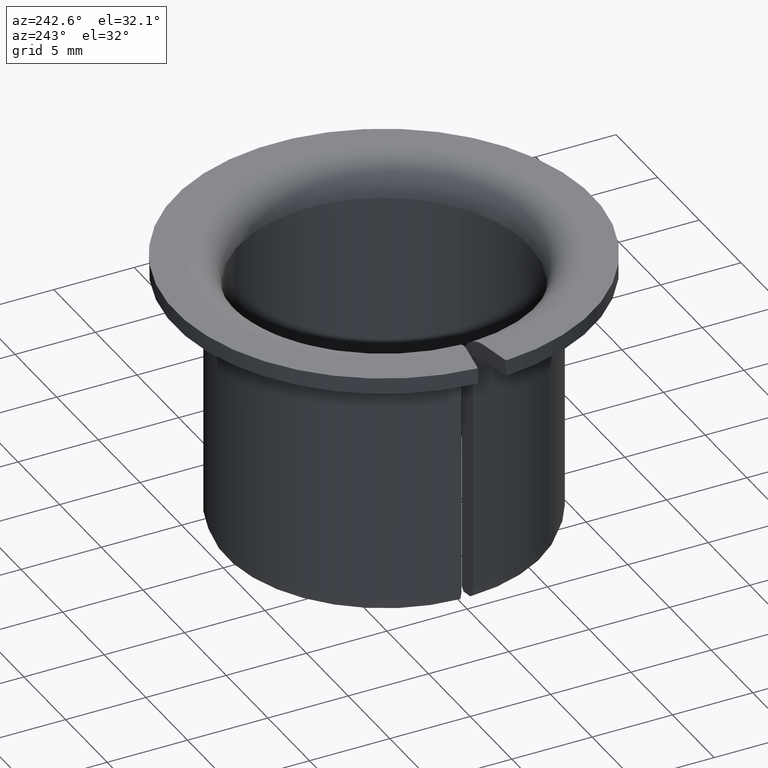
[diagram: clean part render]
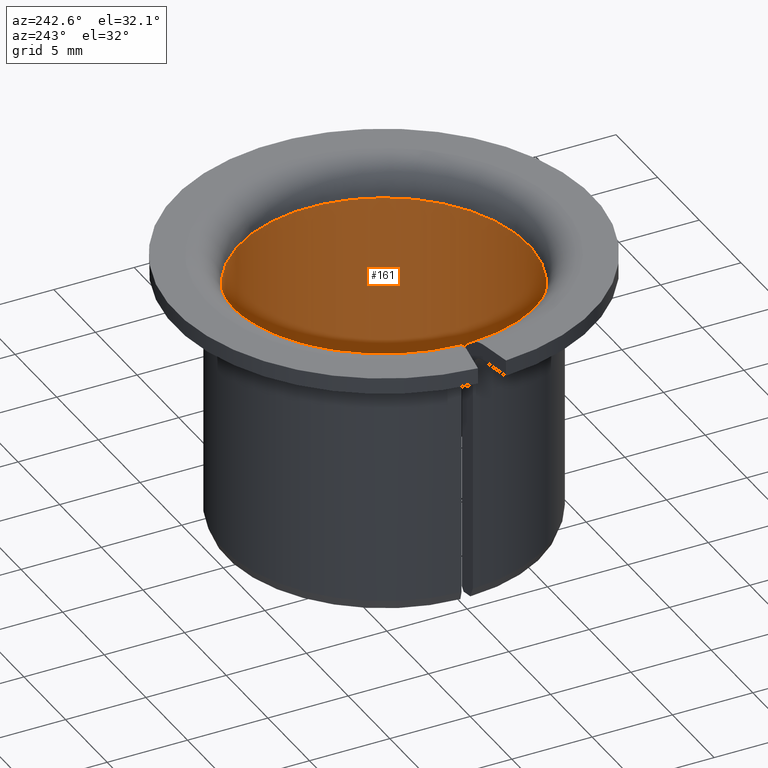
[diagram: same view with one face highlighted and labeled with its STEP entity id]
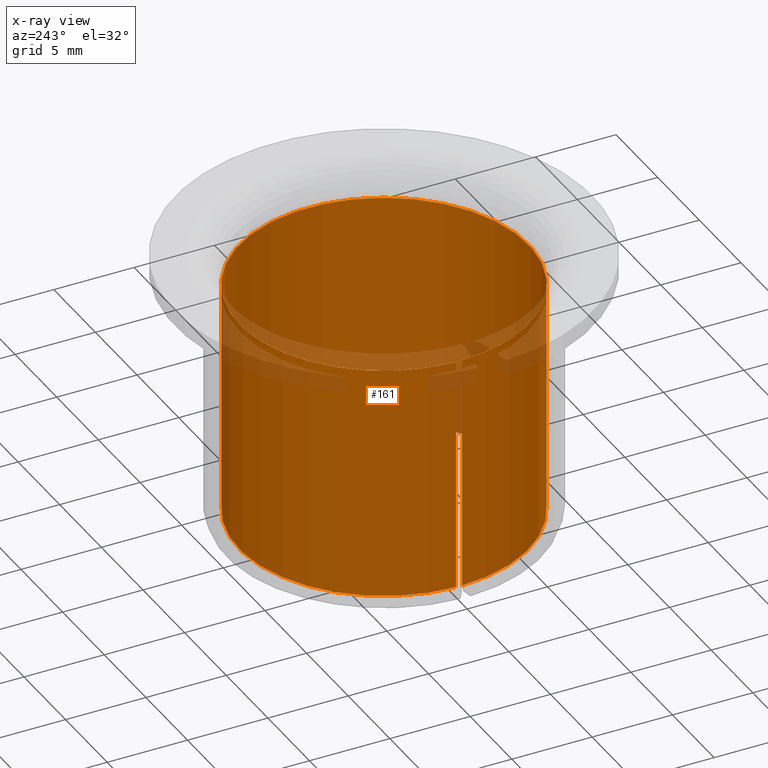
[diagram: x-ray of the same camera — body ghosted, the highlighted face saturated]
A machine part, auxiliary view. The second image highlights one B-rep face of the part: STEP entity #161.
The next image is the same camera in x-ray: the body ghosted, the highlighted face saturated — about 9% of this face is hidden behind the body in this view.
In plain terms, the highlighted cylindrical surface (partial cylindrical patch) has radius 9 mm, axis along (-0, 0, -1).
Its self-contained STEP definition (entity closure, byte-faithful):
#161=ADVANCED_FACE('',(#183),#184,.F.);
#183=FACE_OUTER_BOUND('',#208,.T.);
#184=CYLINDRICAL_SURFACE('',#209,0.009);
#208=EDGE_LOOP('',(#278,#279,#280,#281));
#209=AXIS2_PLACEMENT_3D('',#282,#283,#284);
#278=ORIENTED_EDGE('',*,*,#324,.T.);
#279=ORIENTED_EDGE('',*,*,#338,.T.);
#280=ORIENTED_EDGE('',*,*,#325,.F.);
#281=ORIENTED_EDGE('',*,*,#321,.F.);
#282=CARTESIAN_POINT('',(0.0,0.0,0.0));
#283=DIRECTION('',(0.0,-6.12323399573677E-017,-1.0));
#284=DIRECTION('',(0.0,1.0,-6.12323399573677E-017));
#321=EDGE_CURVE('',#359,#342,#361,.F.);
#324=EDGE_CURVE('',#359,#364,#366,.T.);
#325=EDGE_CURVE('',#342,#367,#368,.T.);
#338=EDGE_CURVE('',#364,#367,#387,.F.);
#342=VERTEX_POINT('',#392);
#359=VERTEX_POINT('',#437);
#361=LINE('',#442,#443);
#364=VERTEX_POINT('',#446);
#366=CIRCLE('',#451,0.009);
#367=VERTEX_POINT('',#452);
#368=CIRCLE('',#453,0.009);
#387=LINE('',#496,#497);
#392=CARTESIAN_POINT('',(0.00899827848821545,-0.00017602343173324,0.015));
#437=CARTESIAN_POINT('',(0.00899827848821545,-0.000176023431733241,0.0003));
#442=CARTESIAN_POINT('',(0.00899827848821545,-0.000176023431733241,-4.72069317444211E-020));
#443=VECTOR('',#511,1.0);
#446=CARTESIAN_POINT('',(0.00899827848821545,0.000176023431733242,0.0003));
#451=AXIS2_PLACEMENT_3D('',#515,#516,#517);
#452=CARTESIAN_POINT('',(0.00899827848821545,0.000176023431733242,0.015));
#453=AXIS2_PLACEMENT_3D('',#518,#519,#520);
#496=CARTESIAN_POINT('',(0.00899827848821545,0.000176023431733241,4.207700068461E-020));
#497=VECTOR('',#543,1.0);
#511=DIRECTION('',(0.0,-6.12323399573677E-017,-1.0));
#515=CARTESIAN_POINT('',(0.0,0.0,0.0003));
#516=DIRECTION('',(0.0,-6.12323399573677E-017,-1.0));
#517=DIRECTION('',(0.0,1.0,-6.12323399573677E-017));
#518=CARTESIAN_POINT('',(0.0,0.0,0.015));
#519=DIRECTION('',(0.0,-6.12323399573677E-017,-1.0));
#520=DIRECTION('',(0.0,1.0,-6.12323399573677E-017));
#543=DIRECTION('',(0.0,-6.12323399573677E-017,-1.0));